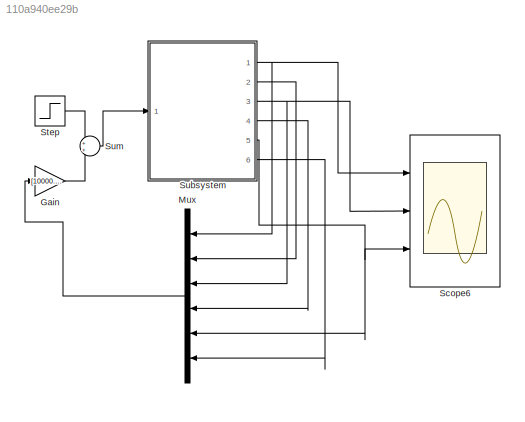
MODEL slx_110a940ee29b
KIND model
CONFIG AbsTol = auto
CONFIG EnableMultiTasking = off
CONFIG FixedStep = auto
CONFIG MaxStep = auto
CONFIG MinStep = auto
CONFIG RelTol = 1e-3
CONFIG SampleTimeConstraint = Unconstrained
CONFIG Solver = ode45
CONFIG SolverName = ode45
CONFIG StartTime = 0.0
CONFIG StopTime = 30
BLOCK [Gain] Gain
  Gain = [10000.000 , 9495.4117 ,  21169.4517 , -32255.5023 , 11278.5179 , -29447.449]
  Multiplication = Matrix(K*u)
  OutDataTypeStr = Inherit: Inherit via internal rule
  ParamDataTypeStr = Inherit: Inherit via internal rule
  SaturateOnIntegerOverflow = off
BLOCK [Mux] Mux
  DisplayOption = bar
  Inputs = 6
  Ports = [6, 1]
BLOCK [Scope] Scope6
  Floating = off
  NumInputPorts = 3
  Ports = [3]
  ScopeSpecificationString = Simulink.scopes.TimeScopeBlockCfg('CurrentConfiguration', extmgr.ConfigurationSet(extmgr.Configuration('Core','General UI',true),extmgr.Configuration('Core','Source UI',true),extmgr.Configuration('Sources','WiredSimulink',true,'DataLoggingVariableName','ScopeData6'),extmgr.Configuration('Visuals','Time Domain',true,'SerializedDisplays',{struct('MinYLimReal','-0.45672','MaxYLimReal','1.16186','YLab...<+1427ch>
BLOCK [Step] Step
  After = 500
  SampleTime = 0
  VectorParams1D = off
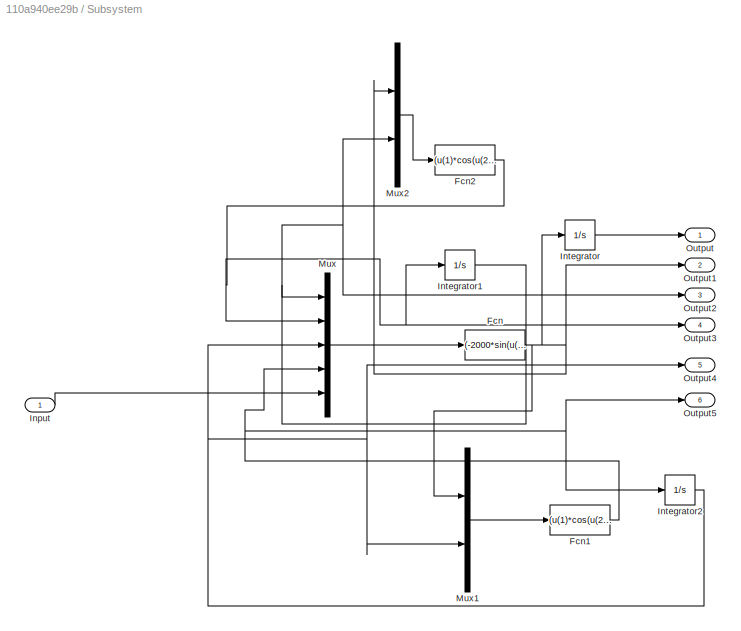
BLOCK [SubSystem] Subsystem
  Ports = [1, 6]
  RequestExecContextInheritance = off
BLOCK [Fcn] Subsystem/Fcn
  Expr = (-2000*sin(u(1))*u(2)^2 + 1000*sin(u(3))*u(4)^2-u(5)+981*cos(u(1))*sin(u(1))+981*cos(u(3))*sin(u(3)))/(100*sin(u(1))^2+100*sin(u(3))^2+1000)
BLOCK [Fcn] Subsystem/Fcn1
  Expr = (u(1)*cos(u(2))-9.81*sin(u(2))) / 10
BLOCK [Fcn] Subsystem/Fcn2
  Expr = (u(1)*cos(u(2))-9.81*sin(u(2))) / 20
BLOCK [Inport] Subsystem/Input
  IconDisplay = Port number
BLOCK [Integrator] Subsystem/Integrator
  InitialCondition = 1
  Ports = [1, 1]
BLOCK [Integrator] Subsystem/Integrator1
  InitialCondition = .2
  Ports = [1, 1]
BLOCK [Integrator] Subsystem/Integrator2
  InitialCondition = .2
  Ports = [1, 1]
BLOCK [Mux] Subsystem/Mux
  DisplayOption = bar
  Inputs = 5
  Ports = [5, 1]
BLOCK [Mux] Subsystem/Mux1
  DisplayOption = bar
  Inputs = 2
  Ports = [2, 1]
BLOCK [Mux] Subsystem/Mux2
  DisplayOption = bar
  Inputs = 2
  Ports = [2, 1]
BLOCK [Outport] Subsystem/Output
  IconDisplay = Port number
BLOCK [Outport] Subsystem/Output1
  IconDisplay = Port number
  Port = 2
BLOCK [Outport] Subsystem/Output2
  IconDisplay = Port number
  Port = 3
BLOCK [Outport] Subsystem/Output3
  IconDisplay = Port number
  Port = 4
BLOCK [Outport] Subsystem/Output4
  IconDisplay = Port number
  Port = 5
BLOCK [Outport] Subsystem/Output5
  IconDisplay = Port number
  Port = 6
BLOCK [Sum] Sum
  IconShape = round
  InputSameDT = off
  Inputs = 2
  OutDataTypeStr = Inherit: Inherit via internal rule
  Ports = [2, 1]
  SaturateOnIntegerOverflow = off
LINE Gain:1 -> Sum:2
LINE Mux:1 -> Gain:1
LINE Step:1 -> Sum:1
NET Subsystem/Fcn1:1 -> Subsystem/Integrator2:1, Subsystem/Mux:4, Subsystem/Output5:1
NET Subsystem/Fcn2:1 -> Subsystem/Integrator1:1, Subsystem/Mux:2, Subsystem/Output3:1
NET Subsystem/Fcn:1 -> Subsystem/Integrator:1, Subsystem/Mux1:1, Subsystem/Mux2:1, Subsystem/Output1:1
LINE Subsystem/Input:1 -> Subsystem/Mux:5
NET Subsystem/Integrator1:1 -> Subsystem/Mux2:2, Subsystem/Mux:1, Subsystem/Output2:1
NET Subsystem/Integrator2:1 -> Subsystem/Mux1:2, Subsystem/Mux:3, Subsystem/Output4:1
LINE Subsystem/Integrator:1 -> Subsystem/Output:1
LINE Subsystem/Mux1:1 -> Subsystem/Fcn1:1
LINE Subsystem/Mux2:1 -> Subsystem/Fcn2:1
LINE Subsystem/Mux:1 -> Subsystem/Fcn:1
NET Subsystem:1 -> Mux:1, Scope6:1
LINE Subsystem:2 -> Mux:2
NET Subsystem:3 -> Mux:3, Scope6:2
LINE Subsystem:4 -> Mux:4
NET Subsystem:5 -> Mux:5, Scope6:3
LINE Subsystem:6 -> Mux:6
LINE Sum:1 -> Subsystem:1
note: NET lines group one-source signal fan-out (src -> all destinations, sorted); 1:1 wires keep LINE
